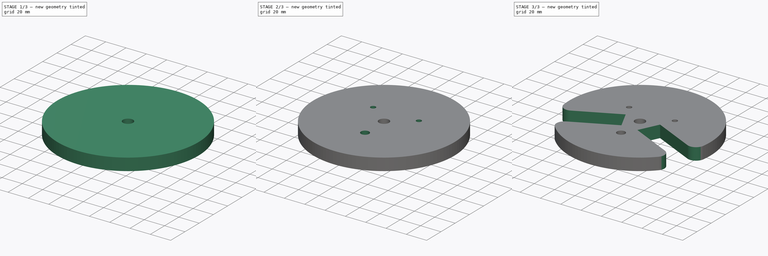
[diagram: build sequence overview — one tinted view per stage of 3, left to right]
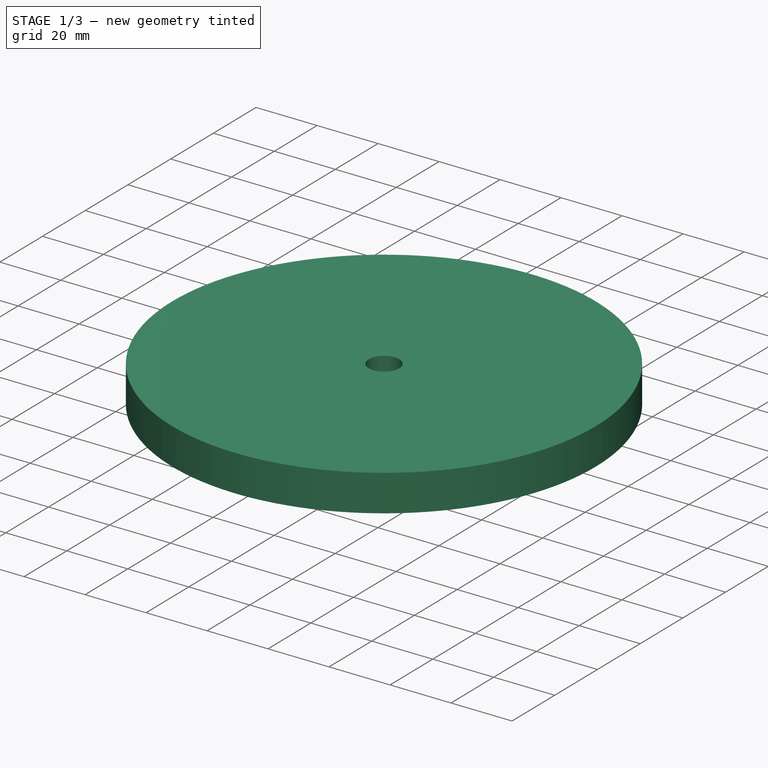
[diagram: stage 1 of 3 — iso view after this stage's code; geometry added in this stage tinted green]
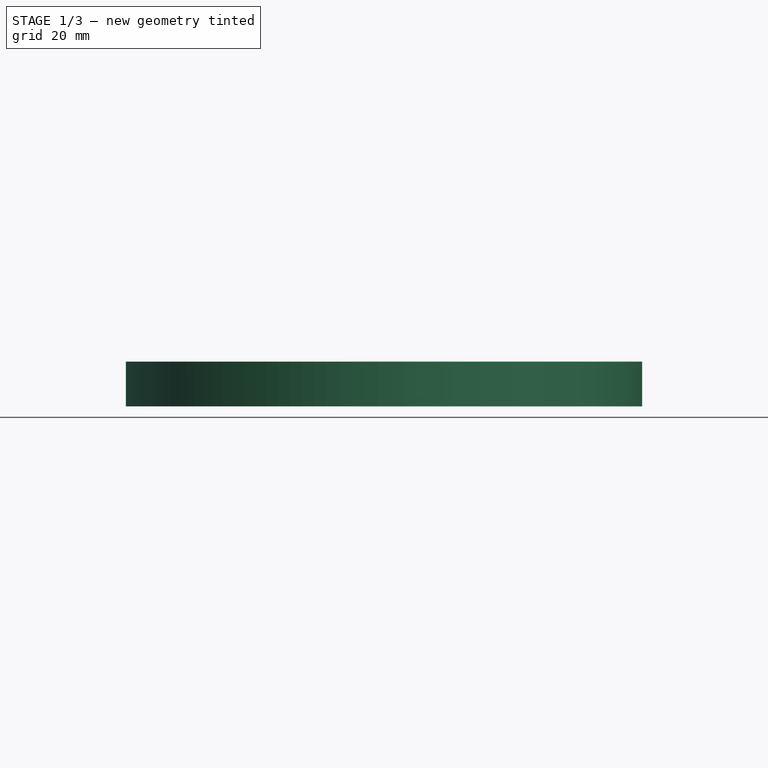
[diagram: stage 1 of 3 — front view after this stage's code; geometry added in this stage tinted green]
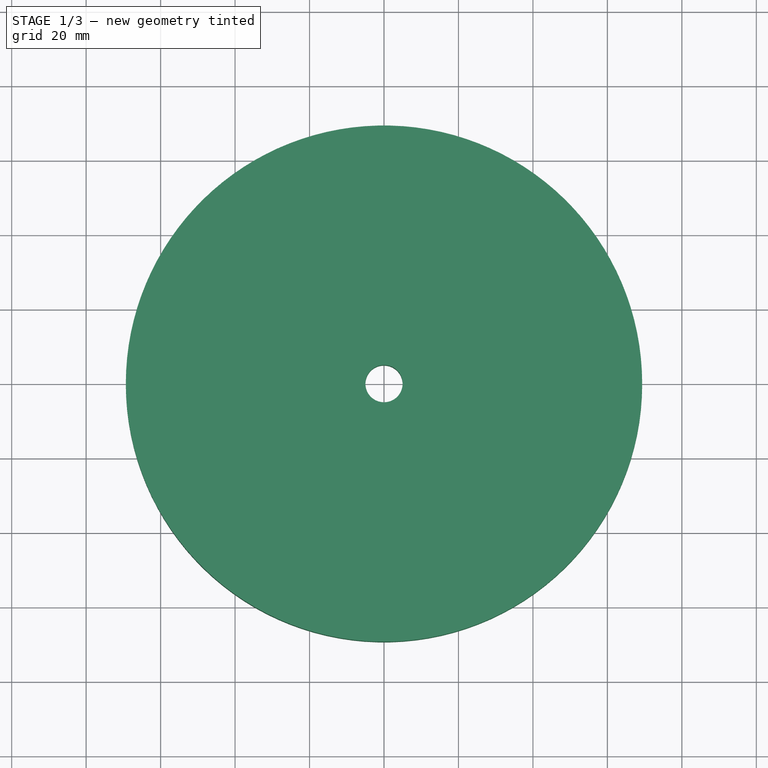
[diagram: stage 1 of 3 — top view after this stage's code; geometry added in this stage tinted green]
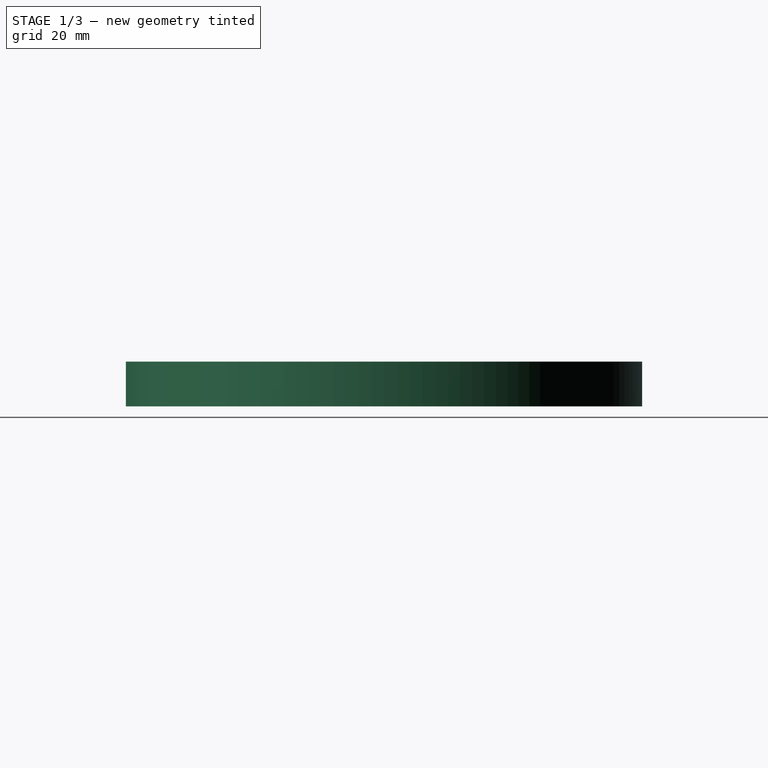
[diagram: stage 1 of 3 — right view after this stage's code; geometry added in this stage tinted green]
FCSTD DOCUMENT  (FreeCAD 1.0R39109 (Git))
Label: Stator_CoilWinder_Cheek_Triangular
Comment: Back Cheek
License: All rights reserved
LicenseURL: http://en.wikipedia.org/wiki/All_rights_reserved
objects: Sketcher::SketchObject×4, PartDesign::Pocket×3, TechDraw::DrawViewDimension×3, PartDesign::Pad×1, Spreadsheet::Sheet×1, PartDesign::Mirrored×1, PartDesign::Body×1, TechDraw::DrawSVGTemplate×1, TechDraw::DrawProjGroupItem×1, TechDraw::DrawPage×1
note: 28 computed .brp shape members not serialized (recipe doc carries the construction recipe); baked Part::Feature solids carry a one-line shape summary decoded from their .brp
EXTERNAL_REF file=../../../Master_of_Puppets.FCStd obj=Alternator
EXTERNAL_REF file=../../../Master_of_Puppets.FCStd obj=Spreadsheet

FEATURE [Sketcher::SketchObject] Sketch
  ArcFitTolerance = 0
  AttachmentSupport = -> [XY_Plane001]
  FullyConstrained = true
  MakeInternals = false
  MapMode = 5
  expr: Constraints[1] = Spreadsheet.CoilWinderDiskRadius
  sketch-geometry (1):
    g0: Circle CenterX=0 CenterY=0 CenterZ=0 NormalX=0 NormalY=0 NormalZ=1 AngleXU=0 Radius=69.3453
  constraints (2):
    c: Coincident(g0,g-1)
    c: Radius(g0) = 69.3453
FEATURE [PartDesign::Pad] Pad
  AllowMultiFace = false
  Direction = (0,0,1)
  Length = 12
  Length2 = 100
  Profile = -> Sketch
  Suppressed = false
  Type = 0
  expr: Length = Spreadsheet.CoilWinderCheekThickness
FEATURE [Sketcher::SketchObject] Sketch001  label="CenterHoleSketch"
  ArcFitTolerance = 0
  AttachmentSupport = -> [XY_Plane001]
  FullyConstrained = true
  MakeInternals = false
  MapMode = 5
  Placement = pos=(0,0,0) rot=(0,1,0;3.14159rad)
  expr: Constraints[1] = Spreadsheet.CoilWinderCenterRodRadius
  sketch-geometry (1):
    g0: Circle CenterX=0 CenterY=0 CenterZ=0 NormalX=0 NormalY=0 NormalZ=1 AngleXU=0 Radius=5
  constraints (2):
    c: Coincident(g0,g-1)
    c: Radius(g0) = 5
FEATURE [PartDesign::Pocket] Pocket  label="CenterHolePocket"
  AllowMultiFace = false
  BaseFeature = -> Pad
  Direction = (0,0,1)
  Length = 5
  Length2 = 100
  Profile = -> Sketch001
  Suppressed = false
  Type = 1
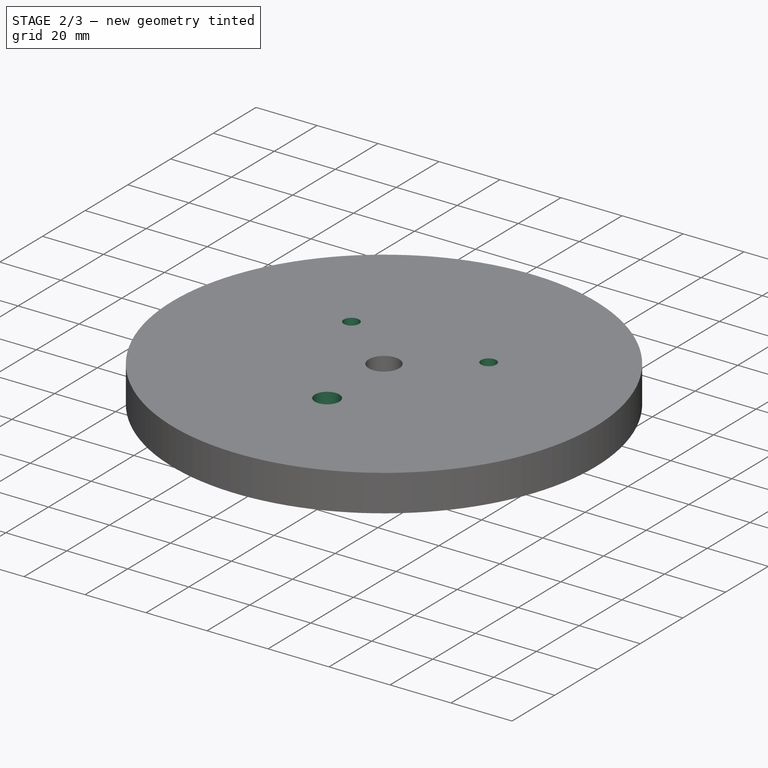
[diagram: stage 2 of 3 — iso view after this stage's code; geometry added in this stage tinted green]
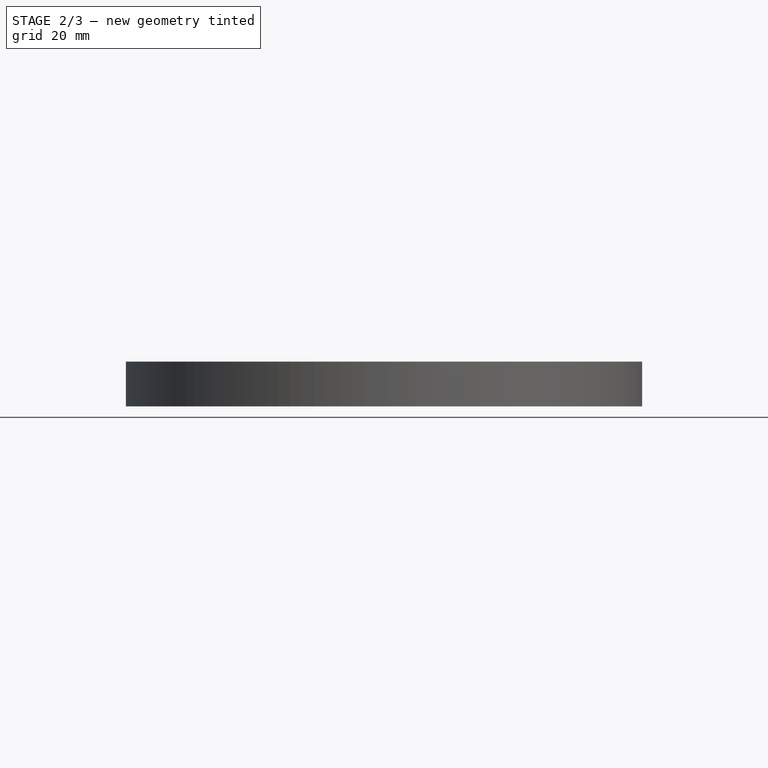
[diagram: stage 2 of 3 — front view after this stage's code; geometry added in this stage tinted green]
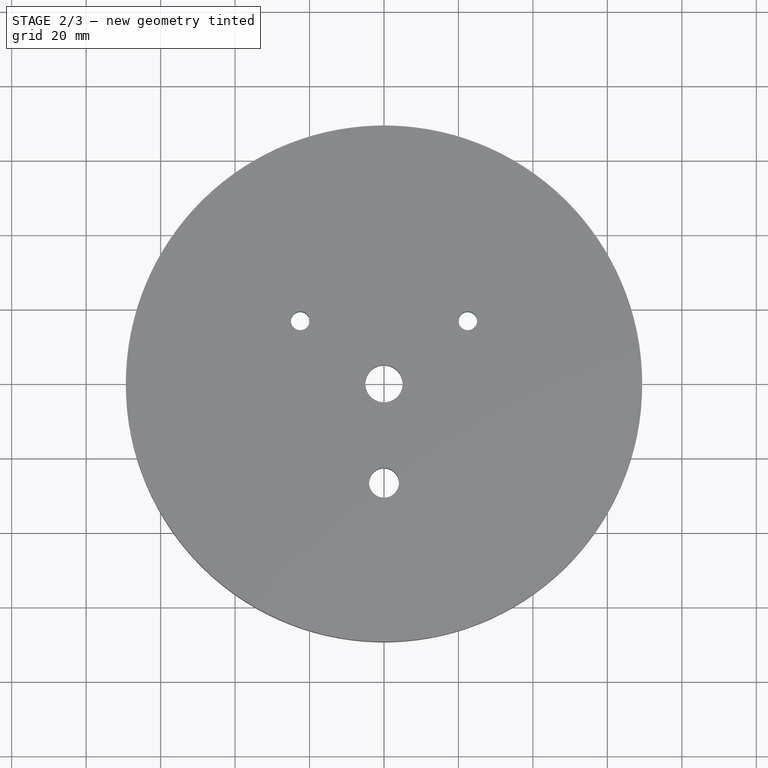
[diagram: stage 2 of 3 — top view after this stage's code; geometry added in this stage tinted green]
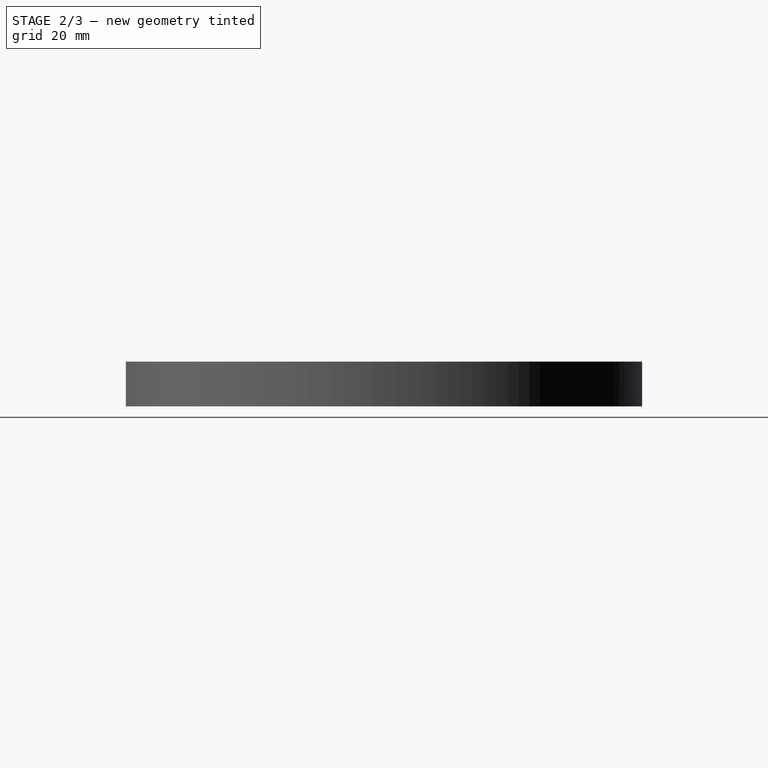
[diagram: stage 2 of 3 — right view after this stage's code; geometry added in this stage tinted green]
FEATURE [Spreadsheet::Sheet] Spreadsheet
  cells = A1='Inputs; A2='Spreadsheet; A3='CoilHoleWidthAtInnerRadius; B3(CoilHoleWidthAtInnerRadius)==Master_of_Puppets#Spreadsheet.CoilHoleWidthAtInnerRadius; A4='CoilType; B4(CoilType)==Master_of_Puppets#Spreadsheet.CoilType; A5='MagnetWidth; B5(MagnetWidth)==Master_of_Puppets#Spreadsheet.MagnetWidth; A6='MagnetLength; B6(MagnetLength)==Master_of_Puppets#Spreadsheet.MagnetLength; A7='Alternator; A8='CoilWinderDiskRadius; B8(CoilWinderDiskRadius)==Master_of_Puppets#Alternator.CoilWinderDiskRadius; A9='CoilWinderCenterRodRadius; B9(CoilWinderCenterRodRadius)==Master_of_Puppets#Alternator.CoilWinderCenterRodRadius; A10='CoilWinderPinRadius; B10(CoilWinderPinRadius)==Master_of_Puppets#Alternator.CoilWinderPinRadius; A11='CoilWinderDiskTapeNotchWidth; B11(CoilWinderDiskTapeNotchWidth)==Master_of_Puppets#Alternator.CoilWinderDiskTapeNotchWidth; A12='CoilWinderDiskFillet; B12(CoilWinderDiskFillet)==Master_of_Puppets#Alternator.CoilWinderDiskFillet; A13='BottomHoleRadius; B13(BottomHoleRadius)==Master_of_Puppets#Alternator.CoilWinderDiskBottomHoleRadius; A14='CoilWinderCheekThickness; B14(CoilWinderCheekThickness)==Master_of_Puppets#Alternator.CoilWinderCheekThickness; A15='DistanceBetweenTriangularCoilAndTapeNotch; B15(DistanceBetweenTriangularCoilAndTapeNotch)==Master_of_Puppets#Alternator.DistanceBetweenTriangularCoilAndTapeNotch
FEATURE [Sketcher::SketchObject] Sketch006  label="HolesSketch"
  ArcFitTolerance = 0
  AttachmentSupport = -> [XY_Plane001]
  FullyConstrained = true
  MakeInternals = false
  MapMode = 5
  Placement = pos=(0,0,0) rot=(0,1,0;3.14159rad)
  expr: Constraints[16] = Spreadsheet.MagnetWidth
  expr: Constraints[18] = Spreadsheet.MagnetLength - Spreadsheet.BottomHoleRadius
  expr: Constraints[2] = Spreadsheet.BottomHoleRadius
  expr: Constraints[7] = Spreadsheet.CoilWinderPinRadius
  sketch-geometry (6):
    g0: Circle [constr] CenterX=0 CenterY=0 CenterZ=0 NormalX=0 NormalY=0 NormalZ=1 AngleXU=0 Radius=30.625
    g1: Circle CenterX=0 CenterY=-26.625 CenterZ=0 NormalX=0 NormalY=0 NormalZ=1 AngleXU=0 Radius=4
    g2: Circle CenterX=-22.5 CenterY=16.875 CenterZ=0 NormalX=0 NormalY=0 NormalZ=1 AngleXU=0 Radius=2.5
    g3: Circle CenterX=22.5 CenterY=16.875 CenterZ=0 NormalX=0 NormalY=0 NormalZ=1 AngleXU=0 Radius=2.5
    g4: ArcOfCircle [constr] CenterX=-22.5 CenterY=16.875 CenterZ=0 NormalX=0 NormalY=0 NormalZ=1 AngleXU=0 Radius=2.5 StartAngle=1.5708 EndAngle=3.14159
    g5: ArcOfCircle [constr] CenterX=22.5 CenterY=16.875 CenterZ=0 NormalX=0 NormalY=0 NormalZ=1 AngleXU=0 Radius=2.5 StartAngle=0 EndAngle=1.5708
  constraints (19):
    c: Coincident(g0,g-1)
    c: PointOnObject(g1,g-2)
    c: Radius(g1) = 4
    c: Equal(g3,g2)
    c: Horizontal(g2,g3)
    c: Tangent(g2,g0)
    c: Tangent(g3,g0)
    c: Radius(g2) = 2.5
    c: Coincident(g4,g2)
    c: PointOnObject(g4,g2)
    c: Horizontal(g4,g2)
    c: Vertical(g4,g2)
    c: Coincident(g5,g3)
    c: PointOnObject(g5,g3)
    c: Horizontal(g3,g5)
    c: Vertical(g3,g5)
    c: DistanceX(g4,g5) = 50
    c: Tangent(g1,g0)
    c: DistanceY(g1,g4) = 46
FEATURE [PartDesign::Pocket] Pocket001  label="HolesPocket"
  BaseFeature = -> Pocket
  Direction = (0,0,1)
  Length = 5
  Length2 = 100
  Profile = -> Sketch006
  Suppressed = false
  Type = 1
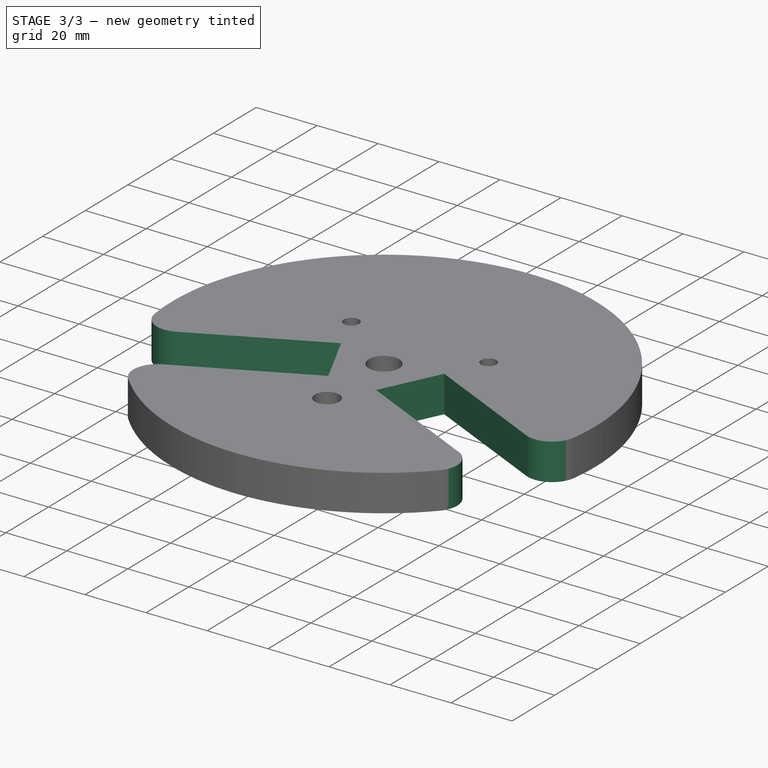
[diagram: stage 3 of 3 — iso view after this stage's code; geometry added in this stage tinted green]
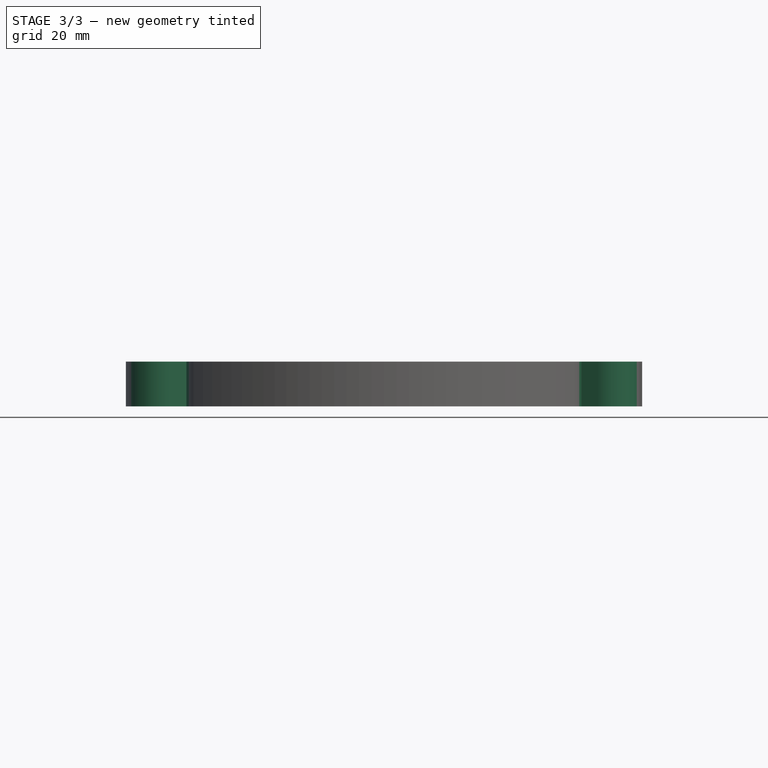
[diagram: stage 3 of 3 — front view after this stage's code; geometry added in this stage tinted green]
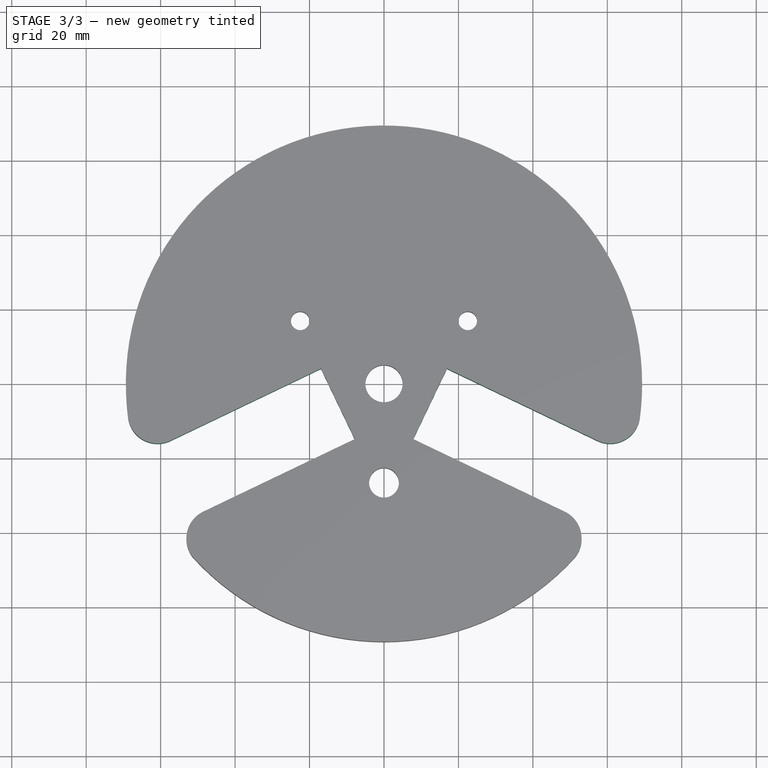
[diagram: stage 3 of 3 — top view after this stage's code; geometry added in this stage tinted green]
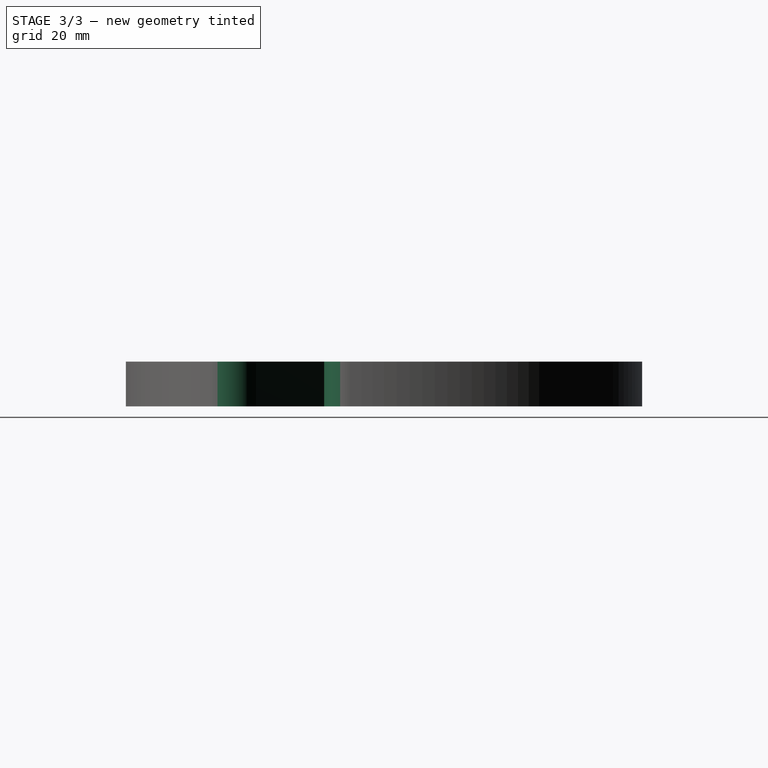
[diagram: stage 3 of 3 — right view after this stage's code; geometry added in this stage tinted green]
FEATURE [Sketcher::SketchObject] Sketch007  label="TapeNotchSketch"
  ArcFitTolerance = 0
  AttachmentOffset = pos=(0,0,12) rot=(0,0,1;0rad)
  AttachmentSupport = -> [XY_Plane001]
  ExternalGeometry = -> [Sketch006]
  FullyConstrained = true
  MakeInternals = false
  MapMode = 2
  Placement = pos=(0,0,12) rot=(0,0,1;0rad)
  expr: .AttachmentOffset.Base.z = Spreadsheet.CoilWinderCheekThickness
  expr: Constraints[0] = Spreadsheet.BottomHoleRadius
  expr: Constraints[10] = Spreadsheet.CoilWinderDiskRadius
  expr: Constraints[12] = Spreadsheet.CoilWinderDiskFillet
  expr: Constraints[16] = Spreadsheet.CoilWinderDiskFillet
  expr: Constraints[1] = Spreadsheet.CoilWinderPinRadius
  expr: Constraints[26] = Spreadsheet.DistanceBetweenTriangularCoilAndTapeNotch
  expr: Constraints[28] = Spreadsheet.DistanceBetweenTriangularCoilAndTapeNotch
  expr: Constraints[2] = Spreadsheet.CoilWinderDiskTapeNotchWidth
  sketch-geometry (11):
    g0: LineSegment [constr] StartX=0 StartY=-26.625 StartZ=0 EndX=3.60749 EndY=-28.353 EndZ=0
    g1: LineSegment [constr] StartX=22.5 StartY=16.875 StartZ=0 EndX=24.7547 EndY=15.795 EndZ=0
    g2: LineSegment StartX=7.84131 StartY=-14.8847 StartZ=0 EndX=16.9134 EndY=4.05465 EndZ=0
    g3: LineSegment StartX=7.84131 StartY=-14.8847 StartZ=0 EndX=48.5444 EndY=-34.3817 EndZ=0
    g4: LineSegment StartX=16.9134 StartY=4.05465 StartZ=0 EndX=57.3521 EndY=-15.3158 EndZ=0
    g5: Circle [constr] CenterX=0 CenterY=0 CenterZ=0 NormalX=0 NormalY=0 NormalZ=1 AngleXU=0 Radius=69.3453
    g6: ArcOfCircle CenterX=60.8081 CenterY=-8.10079 CenterZ=0 NormalX=0 NormalY=0 NormalZ=1 AngleXU=0 Radius=8 StartAngle=4.26568 EndAngle=6.15075
    g7: ArcOfCircle CenterX=-5.368e-13 CenterY=3e-13 CenterZ=0 NormalX=0 NormalY=0 NormalZ=1 AngleXU=0 Radius=69.3453 StartAngle=5.53805 EndAngle=6.15075
    g8: ArcOfCircle CenterX=45.0884 CenterY=-41.5967 CenterZ=0 NormalX=0 NormalY=0 NormalZ=1 AngleXU=0 Radius=8 StartAngle=5.53805 EndAngle=7.40727
    g9: LineSegment [constr] StartX=24.7547 StartY=15.795 StartZ=0 EndX=18.7171 EndY=3.19065 EndZ=0
    g10: LineSegment [constr] StartX=9.64505 StartY=-15.7487 StartZ=0 EndX=3.60749 EndY=-28.353 EndZ=0
  constraints (30):
    c: Distance(g0) = 4
    c: Distance(g1) = 2.5
    c: Distance(g2) = 21
    c: Coincident(g3,g2)
    c: Coincident(g4,g2)
    c: Parallel(g4,g3)
    c: Perpendicular(g2,g4)
    c: Coincident(g1,g-4)
    c: Coincident(g0,g-3)
    c: Coincident(g5,g-1)
    c: Radius(g5) = 69.3453
    c: Tangent(g4,g6) = -1.5708
    c: Radius(g6) = 8
    c: PointOnObject(g6,g5)
    c: Tangent(g7,g6) = -1.5708
    c: Tangent(g8,g3) = 1.5708
    c: Radius(g8) = 8
    c: Tangent(g8,g7) = -1.5708
    c: Tangent(g7,g5) = -1.5708
    c: Coincident(g9,g1)
    c: PointOnObject(g9,g4)
    c: PointOnObject(g10,g3)
    c: Coincident(g10,g0)
    c: Perpendicular(g0,g10)
    c: Perpendicular(g10,g3)
    c: Perpendicular(g4,g9)
    c: Distance(g9,g2) = 2
    c: Equal(g10,g9)
    c: Distance(g10,g2) = 2
    c: Perpendicular(g9,g1)
FEATURE [PartDesign::Pocket] Pocket002  label="TapeNotchPocket"
  BaseFeature = -> Pocket001
  Direction = (0,0,-1)
  Length = 5
  Length2 = 100
  Profile = -> Sketch007
  Suppressed = false
  Type = 1
FEATURE [PartDesign::Mirrored] Mirrored
  BaseFeature = -> Pocket002
  MirrorPlane = -> Sketch007 [V_Axis]
  Originals = -> [Pocket002]
  Suppressed = false
  TransformMode = 0
FEATURE [PartDesign::Body] PolarPattern001Body  label="Stator_CoilWinder_Cheek"
  AllowCompound = false
  Group = -> [Sketch,Pad,Sketch001,Pocket,Sketch006,Pocket001,Sketch007,Pocket002,Mirrored]
  Openafpm_Flat = true
  Origin = -> Origin001
  Tip = -> Mirrored
FEATURE [TechDraw::DrawSVGTemplate] Template
  Height = 210
  Orientation = 1
  Template = <userpath>/micromamba/envs/openafpm-cad-core/share/Mod/TechDraw/Templates/Default_Template_A4_Landscape.svg
  Width = 297
FEATURE [TechDraw::DrawProjGroupItem] View
  CoarseView = false
  Direction = (0,0,1)
  Focus = 100
  HardHidden = false
  IsoCount = 0
  IsoHidden = false
  IsoVisible = false
  LockPosition = false
  Perspective = false
  Rotation = 0
  RotationVector = (1,0,0)
  ScaleType = 0
  ScrubCount = 1
  SeamHidden = false
  SeamVisible = false
  SmoothHidden = false
  SmoothVisible = true
  Source = -> [PolarPattern001Body]
  Type = 0
  X = 148.5
  XDirection = (1,0,0)
  Y = 105
FEATURE [TechDraw::DrawViewDimension] Dimension  label="A"
  AngleOverride = false
  Arbitrary = true
  ArbitraryTolerances = false
  BoxCorners = (2) [(-69.3453,-69.3453,0),(69.3453,69.3453,0)]
  EqualTolerance = true
  ExtensionAngle = 0
  FormatSpec = A
  FormatSpecOverTolerance = %+.2w
  FormatSpecUnderTolerance = %+.2w
  Inverted = false
  LineAngle = 0
  LockPosition = false
  MeasureType = 1
  OverTolerance = 0
  References2D = -> [View]
  Rotation = 0
  ScaleType = 0
  TheoreticalExact = false
  Type = 2
  UnderTolerance = 0
  X = -86.7744
  Y = -4.875
FEATURE [TechDraw::DrawViewDimension] Dimension001  label="B"
  AngleOverride = false
  Arbitrary = true
  ArbitraryTolerances = false
  BoxCorners = (2) [(-69.3453,-69.3453,0),(69.3453,69.3453,0)]
  EqualTolerance = true
  ExtensionAngle = 0
  FormatSpec = B
  FormatSpecOverTolerance = %+.2w
  FormatSpecUnderTolerance = %+.2w
  Inverted = false
  LineAngle = 0
  LockPosition = false
  MeasureType = 1
  OverTolerance = 0
  References2D = -> [View]
  Rotation = 0
  ScaleType = 0
  TheoreticalExact = false
  Type = 1
  UnderTolerance = 0
  X = 0
  Y = 80.7829
FEATURE [TechDraw::DrawViewDimension] Dimension002  label="C"
  AngleOverride = false
  Arbitrary = true
  ArbitraryTolerances = false
  BoxCorners = (2) [(-69.3453,-69.3453,0),(69.3453,69.3453,0)]
  EqualTolerance = true
  ExtensionAngle = 0
  FormatSpec = C
  FormatSpecOverTolerance = %+.2w
  FormatSpecUnderTolerance = %+.2w
  Inverted = false
  LineAngle = 0
  LockPosition = false
  MeasureType = 1
  OverTolerance = 0
  References2D = -> [View]
  Rotation = 0
  ScaleType = 0
  TheoreticalExact = false
  Type = 5
  UnderTolerance = 0
  X = 9.27899
  Y = -22.3726
FEATURE [TechDraw::DrawPage] Page
  KeepUpdated = true
  NextBalloonIndex = 1
  ProjectionType = 0
  Template = -> Template
  Views = -> [View,Dimension,Dimension001,Dimension002]
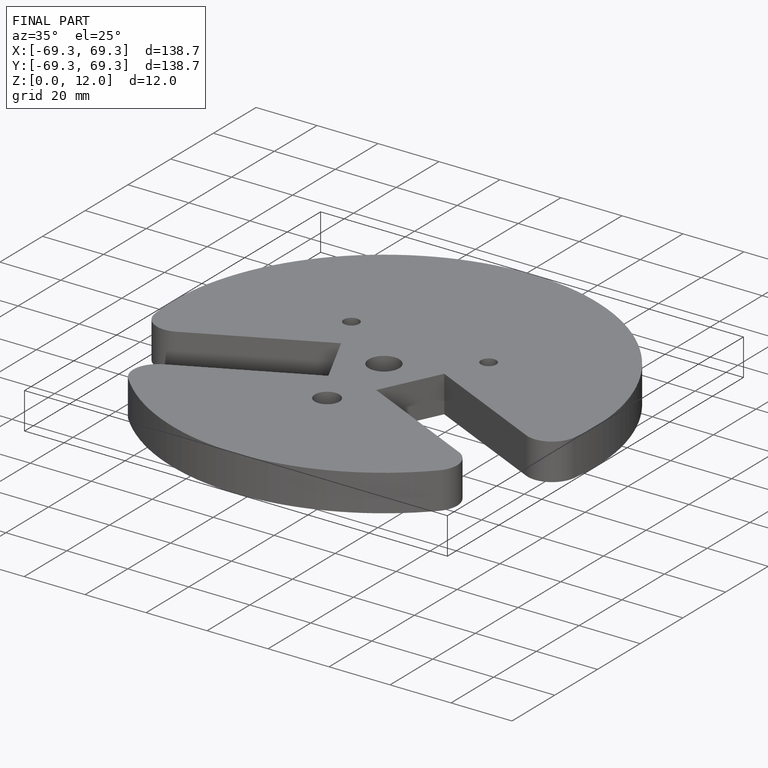
[diagram: finished part — iso view with bounding-box wireframe]
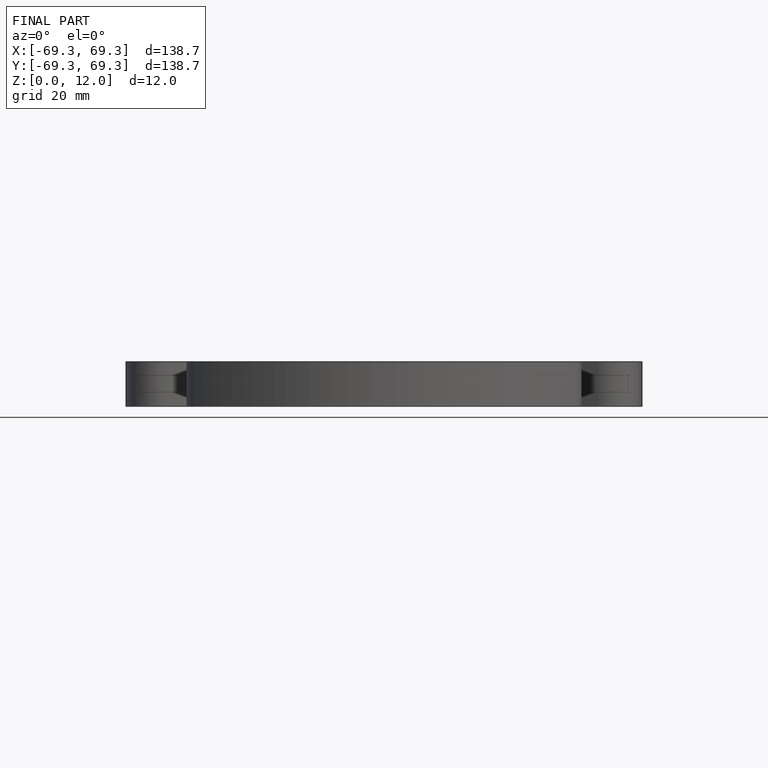
[diagram: finished part — front view with bounding-box wireframe]
